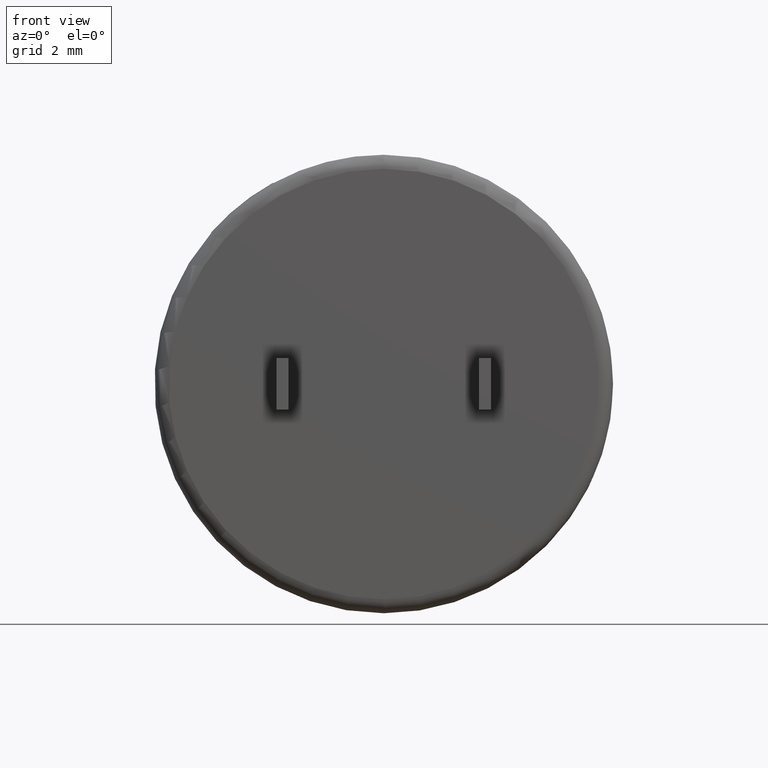
[diagram: clean part render]
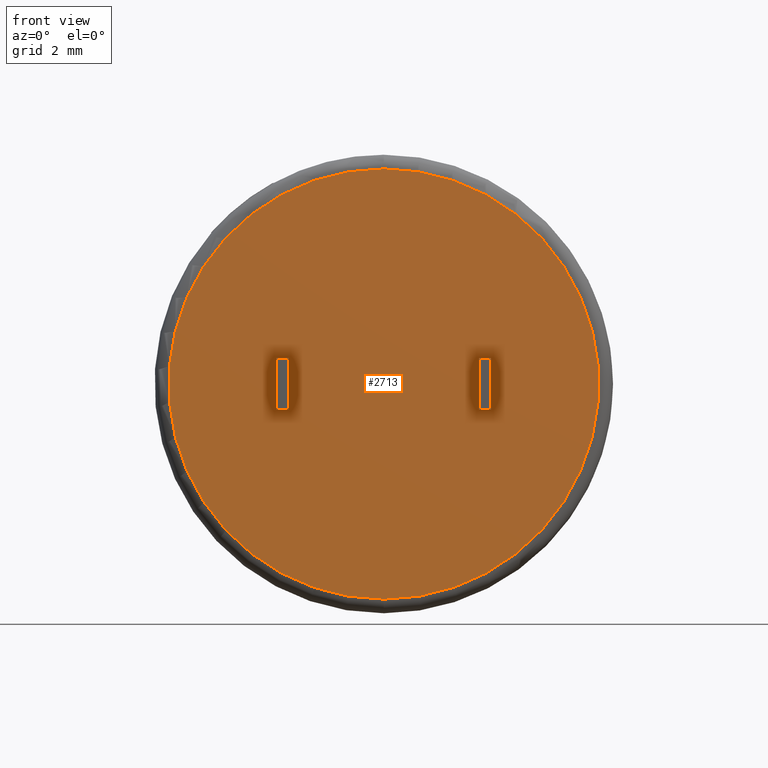
[diagram: same view with one face highlighted and labeled with its STEP entity id]
A machine part, front view. The second image highlights one B-rep face of the part: STEP entity #2713.
In plain terms, the highlighted planar face has unit normal (0, 1, 0).
Its self-contained STEP definition (entity closure, byte-faithful):
#30 = VECTOR ( 'NONE', #165, 1000.000000000000000 ) ;
#50 = CARTESIAN_POINT ( 'NONE',  ( 2.689999999999999900, 0.0000000000000000000, -3.491362382781656000E-015 ) ) ;
#56 = DIRECTION ( 'NONE',  ( 1.000000000000000000, 0.0000000000000000000, -3.614007241618349300E-016 ) ) ;
#88 = VERTEX_POINT ( 'NONE', #1132 ) ;
#117 = EDGE_CURVE ( 'NONE', #1372, #653, #161, .T. ) ;
#124 = EDGE_CURVE ( 'NONE', #653, #2541, #1208, .T. ) ;
#156 = CARTESIAN_POINT ( 'NONE',  ( -2.689999999999998600, 0.0000000000000000000, 0.6500000000000031300 ) ) ;
#161 = LINE ( 'NONE', #1315, #2574 ) ;
#165 = DIRECTION ( 'NONE',  ( 0.0000000000000000000, 0.0000000000000000000, 1.000000000000000000 ) ) ;
#197 = CARTESIAN_POINT ( 'NONE',  ( 0.0000000000000000000, 0.0000000000000000000, 0.0000000000000000000 ) ) ;
#231 = LINE ( 'NONE', #512, #1101 ) ;
#239 = CARTESIAN_POINT ( 'NONE',  ( 0.0000000000000000000, 0.0000000000000000000, 0.0000000000000000000 ) ) ;
#244 = CARTESIAN_POINT ( 'NONE',  ( 2.390000000000000100, 0.0000000000000000000, -0.6500000000000034600 ) ) ;
#305 = ORIENTED_EDGE ( 'NONE', *, *, #2765, .F. ) ;
#312 = EDGE_CURVE ( 'NONE', #1539, #2760, #401, .T. ) ;
#346 = EDGE_LOOP ( 'NONE', ( #2357, #462, #1192, #677 ) ) ;
#348 = VECTOR ( 'NONE', #2732, 1000.000000000000000 ) ;
#350 = LINE ( 'NONE', #375, #348 ) ;
#356 = AXIS2_PLACEMENT_3D ( 'NONE', #746, #1391, #1796 ) ;
#375 = CARTESIAN_POINT ( 'NONE',  ( 2.390000000000000100, 0.0000000000000000000, 0.6499999999999964700 ) ) ;
#401 = CIRCLE ( 'NONE', #356, 5.395249999999999900 ) ;
#429 = DIRECTION ( 'NONE',  ( 0.0000000000000000000, -0.0000000000000000000, -1.000000000000000000 ) ) ;
#437 = CARTESIAN_POINT ( 'NONE',  ( 0.0000000000000000000, 0.0000000000000000000, 5.395249999999999900 ) ) ;
#456 = DIRECTION ( 'NONE',  ( 1.000000000000000000, 0.0000000000000000000, 0.0000000000000000000 ) ) ;
#462 = ORIENTED_EDGE ( 'NONE', *, *, #1611, .F. ) ;
#512 = CARTESIAN_POINT ( 'NONE',  ( -2.689999999999998600, 0.0000000000000000000, 0.6500000000000031300 ) ) ;
#559 = LINE ( 'NONE', #1499, #788 ) ;
#636 = CARTESIAN_POINT ( 'NONE',  ( 2.390000000000000100, 0.0000000000000000000, 0.6499999999999964700 ) ) ;
#653 = VERTEX_POINT ( 'NONE', #2560 ) ;
#660 = DIRECTION ( 'NONE',  ( 1.000000000000000000, 0.0000000000000000000, -3.614007241618349300E-016 ) ) ;
#677 = ORIENTED_EDGE ( 'NONE', *, *, #117, .F. ) ;
#728 = EDGE_CURVE ( 'NONE', #2022, #1601, #231, .T. ) ;
#730 = CARTESIAN_POINT ( 'NONE',  ( -2.689999999999998600, 0.0000000000000000000, 3.147442794825880300E-015 ) ) ;
#746 = CARTESIAN_POINT ( 'NONE',  ( 0.0000000000000000000, 0.0000000000000000000, 0.0000000000000000000 ) ) ;
#788 = VECTOR ( 'NONE', #1924, 1000.000000000000000 ) ;
#813 = PLANE ( 'NONE',  #1910 ) ;
#825 = DIRECTION ( 'NONE',  ( 0.0000000000000000000, -0.0000000000000000000, 1.000000000000000000 ) ) ;
#971 = ORIENTED_EDGE ( 'NONE', *, *, #728, .T. ) ;
#1101 = VECTOR ( 'NONE', #56, 1000.000000000000000 ) ;
#1132 = CARTESIAN_POINT ( 'NONE',  ( -2.689999999999998600, -0.0000000000000000000, -0.6499999999999968000 ) ) ;
#1133 = LINE ( 'NONE', #730, #30 ) ;
#1163 = ORIENTED_EDGE ( 'NONE', *, *, #312, .T. ) ;
#1178 = CARTESIAN_POINT ( 'NONE',  ( 6.824497369098519000E-016, 0.0000000000000000000, -5.395249999999999900 ) ) ;
#1192 = ORIENTED_EDGE ( 'NONE', *, *, #124, .F. ) ;
#1195 = CIRCLE ( 'NONE', #1969, 5.395249999999999900 ) ;
#1208 = LINE ( 'NONE', #50, #2643 ) ;
#1230 = EDGE_CURVE ( 'NONE', #1601, #1662, #1311, .T. ) ;
#1263 = VECTOR ( 'NONE', #660, 1000.000000000000000 ) ;
#1311 = LINE ( 'NONE', #1699, #2365 ) ;
#1315 = CARTESIAN_POINT ( 'NONE',  ( 2.390000000000000100, 0.0000000000000000000, -0.6500000000000034600 ) ) ;
#1372 = VERTEX_POINT ( 'NONE', #244 ) ;
#1387 = CARTESIAN_POINT ( 'NONE',  ( 2.689999999999999900, 0.0000000000000000000, 0.6499999999999964700 ) ) ;
#1391 = DIRECTION ( 'NONE',  ( -0.0000000000000000000, -1.000000000000000000, -0.0000000000000000000 ) ) ;
#1499 = CARTESIAN_POINT ( 'NONE',  ( 2.390000000000000100, 0.0000000000000000000, -0.6500000000000034600 ) ) ;
#1535 = DIRECTION ( 'NONE',  ( 0.0000000000000000000, 0.0000000000000000000, 1.000000000000000000 ) ) ;
#1539 = VERTEX_POINT ( 'NONE', #1178 ) ;
#1601 = VERTEX_POINT ( 'NONE', #1657 ) ;
#1611 = EDGE_CURVE ( 'NONE', #2541, #2741, #350, .T. ) ;
#1651 = ORIENTED_EDGE ( 'NONE', *, *, #2753, .T. ) ;
#1657 = CARTESIAN_POINT ( 'NONE',  ( -2.389999999999998800, 0.0000000000000000000, 0.6500000000000030200 ) ) ;
#1662 = VERTEX_POINT ( 'NONE', #1680 ) ;
#1680 = CARTESIAN_POINT ( 'NONE',  ( -2.389999999999998800, 0.0000000000000000000, -0.6499999999999969100 ) ) ;
#1697 = FACE_BOUND ( 'NONE', #346, .T. ) ;
#1699 = CARTESIAN_POINT ( 'NONE',  ( -2.389999999999998800, 0.0000000000000000000, 0.6500000000000030200 ) ) ;
#1796 = DIRECTION ( 'NONE',  ( 0.0000000000000000000, 0.0000000000000000000, 1.000000000000000000 ) ) ;
#1801 = FACE_BOUND ( 'NONE', #2155, .T. ) ;
#1882 = ORIENTED_EDGE ( 'NONE', *, *, #2250, .T. ) ;
#1910 = AXIS2_PLACEMENT_3D ( 'NONE', #197, #2087, #825 ) ;
#1924 = DIRECTION ( 'NONE',  ( -0.0000000000000000000, -0.0000000000000000000, -1.000000000000000000 ) ) ;
#1937 = DIRECTION ( 'NONE',  ( -0.0000000000000000000, -1.000000000000000000, -0.0000000000000000000 ) ) ;
#1957 = CARTESIAN_POINT ( 'NONE',  ( -2.689999999999998600, -0.0000000000000000000, -0.6499999999999968000 ) ) ;
#1969 = AXIS2_PLACEMENT_3D ( 'NONE', #239, #1937, #1535 ) ;
#2022 = VERTEX_POINT ( 'NONE', #156 ) ;
#2087 = DIRECTION ( 'NONE',  ( 0.0000000000000000000, 1.000000000000000000, 0.0000000000000000000 ) ) ;
#2155 = EDGE_LOOP ( 'NONE', ( #1882, #971, #2749, #305 ) ) ;
#2196 = DIRECTION ( 'NONE',  ( 0.0000000000000000000, 0.0000000000000000000, 1.000000000000000000 ) ) ;
#2203 = EDGE_CURVE ( 'NONE', #2741, #1372, #559, .T. ) ;
#2250 = EDGE_CURVE ( 'NONE', #88, #2022, #1133, .T. ) ;
#2357 = ORIENTED_EDGE ( 'NONE', *, *, #2203, .F. ) ;
#2365 = VECTOR ( 'NONE', #429, 1000.000000000000000 ) ;
#2448 = FACE_OUTER_BOUND ( 'NONE', #2611, .T. ) ;
#2519 = LINE ( 'NONE', #1957, #1263 ) ;
#2541 = VERTEX_POINT ( 'NONE', #1387 ) ;
#2560 = CARTESIAN_POINT ( 'NONE',  ( 2.689999999999999900, 0.0000000000000000000, -0.6500000000000034600 ) ) ;
#2574 = VECTOR ( 'NONE', #456, 1000.000000000000000 ) ;
#2611 = EDGE_LOOP ( 'NONE', ( #1651, #1163 ) ) ;
#2643 = VECTOR ( 'NONE', #2196, 1000.000000000000000 ) ;
#2713 = ADVANCED_FACE ( 'NONE', ( #2448, #1801, #1697 ), #813, .F. ) ;
#2732 = DIRECTION ( 'NONE',  ( -1.000000000000000000, -0.0000000000000000000, -0.0000000000000000000 ) ) ;
#2741 = VERTEX_POINT ( 'NONE', #636 ) ;
#2749 = ORIENTED_EDGE ( 'NONE', *, *, #1230, .T. ) ;
#2753 = EDGE_CURVE ( 'NONE', #2760, #1539, #1195, .T. ) ;
#2760 = VERTEX_POINT ( 'NONE', #437 ) ;
#2765 = EDGE_CURVE ( 'NONE', #88, #1662, #2519, .T. ) ;